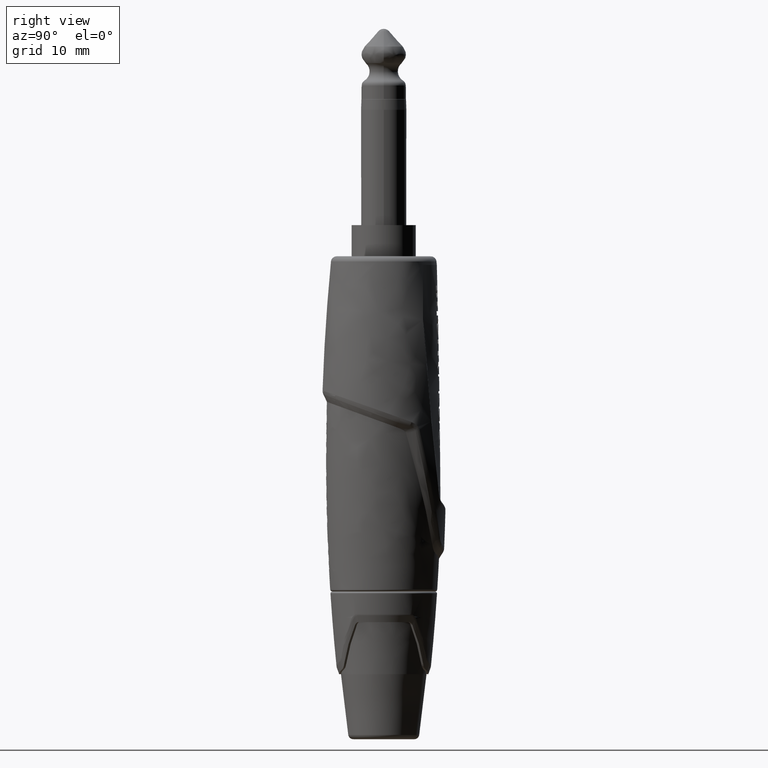
[diagram: clean part render]
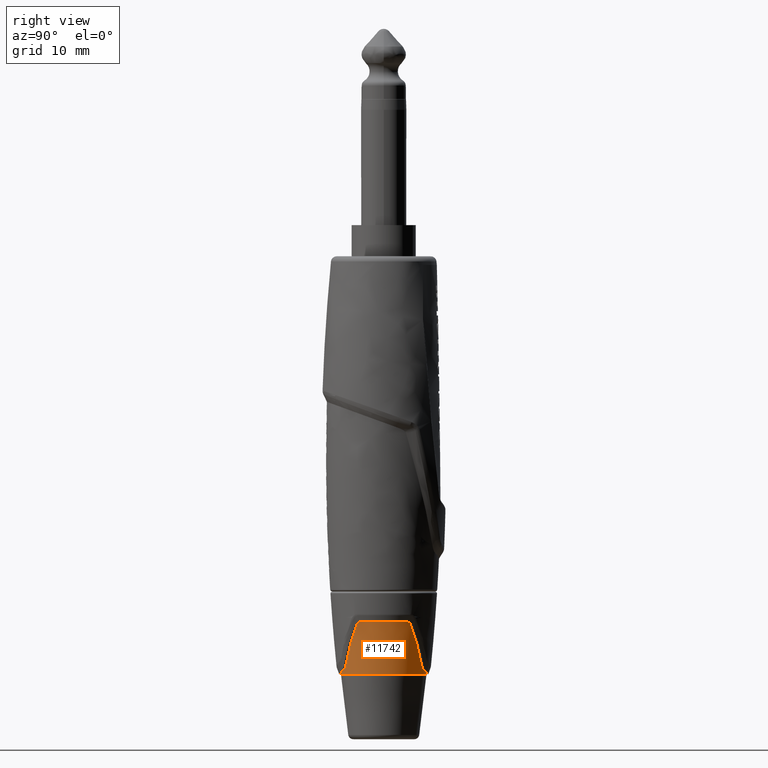
[diagram: same view with one face highlighted and labeled with its STEP entity id]
A machine part, right view. The second image highlights one B-rep face of the part: STEP entity #11742.
In plain terms, the highlighted conical surface has half-angle 4.494 deg.
Its self-contained STEP definition (entity closure, byte-faithful):
#2542=CARTESIAN_POINT('',(-3.214576939721E-9,5.935367829215E0,
-7.980427843015E1));
#2543=CARTESIAN_POINT('',(2.405743001022E-2,5.935368588243E0,
-7.980426877392E1));
#2544=CARTESIAN_POINT('',(7.232392990912E-2,5.935225014975E0,
-7.980236732136E1));
#2545=CARTESIAN_POINT('',(1.450252067045E-1,5.934570322352E0,
-7.979379003557E1));
#2546=CARTESIAN_POINT('',(1.940156220513E-1,5.933832990734E0,
-7.978411093876E1));
#2547=CARTESIAN_POINT('',(2.186053521362E-1,5.933388172123E0,
-7.977824806951E1));
#2553=CARTESIAN_POINT('',(0.E0,0.E0,-7.980427843015E1));
#2554=DIRECTION('',(0.E0,0.E0,-1.E0));
#2555=DIRECTION('',(-1.079773481398E-9,1.E0,0.E0));
#2556=AXIS2_PLACEMENT_3D('',#2553,#2554,#2555);
#2558=CARTESIAN_POINT('',(2.477772238033E0,5.457369396803E0,-7.906449856780E1));
#2559=CARTESIAN_POINT('',(2.502552941307E0,5.446912991119E0,-7.905529364991E1));
#2560=CARTESIAN_POINT('',(2.551326093011E0,5.426263844376E0,-7.903341091480E1));
#2561=CARTESIAN_POINT('',(2.623039114270E0,5.395772970653E0,-7.898967508579E1));
#2562=CARTESIAN_POINT('',(2.690884667158E0,5.366872165230E0,-7.893697436575E1));
#2563=CARTESIAN_POINT('',(2.754393653480E0,5.339823454748E0,-7.887721296952E1));
#2564=CARTESIAN_POINT('',(2.814108127891E0,5.314460599751E0,-7.881108831934E1));
#2565=CARTESIAN_POINT('',(2.869667448939E0,5.290981248271E0,-7.874028096130E1));
#2566=CARTESIAN_POINT('',(2.921107643350E0,5.269374632968E0,-7.866648394814E1));
#2567=CARTESIAN_POINT('',(2.969089848315E0,5.249374527801E0,-7.859010859145E1));
#2568=CARTESIAN_POINT('',(3.013972632005E0,5.230847287580E0,-7.851159777380E1));
#2569=CARTESIAN_POINT('',(3.042105827213E0,5.219362230846E0,-7.845802066240E1));
#2570=CARTESIAN_POINT('',(3.055790395814E0,5.213807218985E0,-7.843095975731E1));
#2572=CARTESIAN_POINT('',(3.055790395814E0,5.213807218985E0,-7.843095975731E1));
#2573=CARTESIAN_POINT('',(3.199225481170E0,5.158814945593E0,-7.811183816789E1));
#2574=CARTESIAN_POINT('',(3.495943720286E0,5.033037258404E0,-7.744049557712E1));
#2575=CARTESIAN_POINT('',(3.970522688522E0,4.783920537680E0,-7.632439744502E1));
#2576=CARTESIAN_POINT('',(4.457517597022E0,4.469062705571E0,-7.513267857058E1));
#2577=CARTESIAN_POINT('',(4.930300136932E0,4.089410358988E0,-7.392806801860E1));
#2578=CARTESIAN_POINT('',(5.176544697530E0,3.848458386938E0,-7.327812770477E1));
#2579=CARTESIAN_POINT('',(5.289067114612E0,3.729791299993E0,-7.297827848723E1));
#2589=CARTESIAN_POINT('',(5.289067114612E0,3.729791299993E0,-7.297827848723E1));
#2590=CARTESIAN_POINT('',(5.295275306549E0,3.723718547019E0,-7.295825623630E1));
#2591=CARTESIAN_POINT('',(5.308246224995E0,3.710509993429E0,-7.291980649672E1));
#2592=CARTESIAN_POINT('',(5.328895395166E0,3.688127923181E0,-7.286678687944E1));
#2593=CARTESIAN_POINT('',(5.350643022831E0,3.663342330566E0,-7.281773410633E1));
#2594=CARTESIAN_POINT('',(5.373456956697E0,3.636186559236E0,-7.277225779388E1));
#2595=CARTESIAN_POINT('',(5.397528357165E0,3.606318482320E0,-7.273023385530E1));
#2596=CARTESIAN_POINT('',(5.423183780264E0,3.573160702655E0,-7.269160119628E1));
#2597=CARTESIAN_POINT('',(5.450956751219E0,3.535737172532E0,-7.265651400215E1));
#2598=CARTESIAN_POINT('',(5.479661439897E0,3.495393380348E0,-7.262708162539E1));
#2599=CARTESIAN_POINT('',(5.507286092369E0,3.454964619192E0,-7.260502173630E1));
#2600=CARTESIAN_POINT('',(5.533920873759E0,3.414409573708E0,-7.258984721764E1));
#2601=CARTESIAN_POINT('',(5.559403245834E0,3.374084714536E0,-7.258108127132E1));
#2602=CARTESIAN_POINT('',(5.575786870553E0,3.347159441775E0,-7.257915629583E1));
#2603=CARTESIAN_POINT('',(5.583817857424E0,3.333708252633E0,-7.257915389419E1));
#2609=CARTESIAN_POINT('',(0.E0,0.E0,-7.257915389419E1));
#2610=DIRECTION('',(0.E0,0.E0,-1.E0));
#2611=DIRECTION('',(8.586158150278E-1,5.126196271937E-1,0.E0));
#2612=AXIS2_PLACEMENT_3D('',#2609,#2610,#2611);
#2618=CARTESIAN_POINT('',(5.583852531396E0,-3.333650174767E0,
-7.257915389268E1));
#2619=CARTESIAN_POINT('',(5.575456746672E0,-3.347713084963E0,
-7.257915389268E1));
#2620=CARTESIAN_POINT('',(5.558148797882E0,-3.376144346927E0,
-7.258124947564E1));
#2621=CARTESIAN_POINT('',(5.530080701538E0,-3.420402738208E0,
-7.259149373315E1));
#2622=CARTESIAN_POINT('',(5.501273111130E0,-3.463934981099E0,
-7.260914290318E1));
#2623=CARTESIAN_POINT('',(5.472872035136E0,-3.505095237454E0,
-7.263337257516E1));
#2624=CARTESIAN_POINT('',(5.444648175350E0,-3.544374822399E0,
-7.266390705311E1));
#2625=CARTESIAN_POINT('',(5.416459092717E0,-3.581995499793E0,
-7.270113989508E1));
#2626=CARTESIAN_POINT('',(5.388498173466E0,-3.617716761391E0,
-7.274511917068E1));
#2627=CARTESIAN_POINT('',(5.360801446575E0,-3.651492924784E0,
-7.279623148726E1));
#2628=CARTESIAN_POINT('',(5.334069356219E0,-3.682443820910E0,
-7.285392132763E1));
#2629=CARTESIAN_POINT('',(5.309573576738E0,-3.709160158451E0,
-7.291587875958E1));
#2630=CARTESIAN_POINT('',(5.295592961788E0,-3.723393432392E0,
-7.295733725753E1));
#2631=CARTESIAN_POINT('',(5.289067115470E0,-3.729791300809E0,
-7.297827847232E1));
#2637=CARTESIAN_POINT('',(5.289067115470E0,-3.729791300809E0,
-7.297827847232E1));
#2638=CARTESIAN_POINT('',(5.176729633156E0,-3.848263353902E0,
-7.327763487716E1));
#2639=CARTESIAN_POINT('',(4.930751265333E0,-4.089009644954E0,
-7.392689613355E1));
#2640=CARTESIAN_POINT('',(4.457781037599E0,-4.468886980102E0,
-7.513202940219E1));
#2641=CARTESIAN_POINT('',(3.970644267600E0,-4.783849891005E0,
-7.632410608510E1));
#2642=CARTESIAN_POINT('',(3.496096530260E0,-5.032965881047E0,
-7.744014381197E1));
#2643=CARTESIAN_POINT('',(3.199284097816E0,-5.158792472378E0,
-7.811170775401E1));
#2644=CARTESIAN_POINT('',(3.055790394264E0,-5.213807219598E0,
-7.843095976056E1));
#2650=CARTESIAN_POINT('',(3.055790394264E0,-5.213807219598E0,
-7.843095976056E1));
#2651=CARTESIAN_POINT('',(3.042099570971E0,-5.219364773057E0,
-7.845803300540E1));
#2652=CARTESIAN_POINT('',(3.013952097555E0,-5.230855685123E0,
-7.851163657447E1));
#2653=CARTESIAN_POINT('',(2.969037462885E0,-5.249396221462E0,
-7.859019778310E1));
#2654=CARTESIAN_POINT('',(2.921022277151E0,-5.269410331427E0,
-7.866661446464E1));
#2655=CARTESIAN_POINT('',(2.869559623600E0,-5.291026680203E0,
-7.874042764454E1));
#2656=CARTESIAN_POINT('',(2.813987754291E0,-5.314511609863E0,
-7.881123185153E1));
#2657=CARTESIAN_POINT('',(2.754269704239E0,-5.339876197180E0,
-7.887733939846E1));
#2658=CARTESIAN_POINT('',(2.690772098420E0,-5.366920123907E0,
-7.893706964960E1));
#2659=CARTESIAN_POINT('',(2.622955852332E0,-5.395808413775E0,
-7.898973074046E1));
#2660=CARTESIAN_POINT('',(2.551278135625E0,-5.426284179299E0,
-7.903343399066E1));
#2661=CARTESIAN_POINT('',(2.502535759709E0,-5.446920241034E0,
-7.905530003205E1));
#2662=CARTESIAN_POINT('',(2.477772237161E0,-5.457369397180E0,
-7.906449856802E1));
#2668=CARTESIAN_POINT('',(2.477772237161E0,-5.457369397180E0,
-7.906449856802E1));
#2669=CARTESIAN_POINT('',(2.356238643223E0,-5.508465834193E0,
-7.911179269155E1));
#2670=CARTESIAN_POINT('',(2.110863869198E0,-5.602351588842E0,
-7.920428871023E1));
#2671=CARTESIAN_POINT('',(1.736727949109E0,-5.718505716387E0,
-7.933595097190E1));
#2672=CARTESIAN_POINT('',(1.359595187793E0,-5.809679232428E0,
-7.945949575850E1));
#2673=CARTESIAN_POINT('',(9.792119978848E-1,-5.876508252455E0,
-7.957510172443E1));
#2674=CARTESIAN_POINT('',(5.976952964328E-1,-5.918954633172E0,
-7.968213263750E1));
#2675=CARTESIAN_POINT('',(3.446537914286E-1,-5.931183096983E0,
-7.974723995524E1));
#2676=CARTESIAN_POINT('',(2.186053523465E-1,-5.933388171936E0,
-7.977824807179E1));
#2682=CARTESIAN_POINT('',(2.186053523465E-1,-5.933388171936E0,
-7.977824807179E1));
#2683=CARTESIAN_POINT('',(1.940139035244E-1,-5.933833021618E0,
-7.978411135111E1));
#2684=CARTESIAN_POINT('',(1.450211776988E-1,-5.934570361226E0,
-7.979379054926E1));
#2685=CARTESIAN_POINT('',(7.232829995520E-2,-5.935224979536E0,
-7.980236686526E1));
#2686=CARTESIAN_POINT('',(2.405926877340E-2,-5.935368587711E0,
-7.980426877434E1));
#2687=CARTESIAN_POINT('',(-2.991405605311E-9,-5.935367829094E0,
-7.980427843169E1));
#3322=CARTESIAN_POINT('',(2.186053521362E-1,5.933388172123E0,
-7.977824806951E1));
#3323=CARTESIAN_POINT('',(3.446526443568E-1,5.931183117228E0,
-7.974724023521E1));
#3324=CARTESIAN_POINT('',(5.976928039685E-1,5.918954826969E0,
-7.968213330393E1));
#3325=CARTESIAN_POINT('',(9.792104924080E-1,5.876508498970E0,
-7.957510217417E1));
#3326=CARTESIAN_POINT('',(1.359596980093E0,5.809679017457E0,-7.945949524798E1));
#3327=CARTESIAN_POINT('',(1.736734705191E0,5.718503739474E0,-7.933594863608E1));
#3328=CARTESIAN_POINT('',(2.110859023059E0,5.602353097571E0,-7.920429041752E1));
#3329=CARTESIAN_POINT('',(2.356236572730E0,5.508466704716E0,-7.911179349726E1));
#3330=CARTESIAN_POINT('',(2.477772238033E0,5.457369396803E0,-7.906449856780E1));
#8341=CARTESIAN_POINT('',(-3.214576939721E-9,5.935367829215E0,
-7.980427843015E1));
#8342=VERTEX_POINT('',#8341);
#8347=CARTESIAN_POINT('',(-2.991405605311E-9,-5.935367829094E0,
-7.980427843169E1));
#8348=VERTEX_POINT('',#8347);
#8349=VERTEX_POINT('',#2558);
#8350=VERTEX_POINT('',#2570);
#8351=VERTEX_POINT('',#3322);
#8363=VERTEX_POINT('',#2682);
#8364=VERTEX_POINT('',#2668);
#8365=VERTEX_POINT('',#2650);
#8366=VERTEX_POINT('',#2637);
#8367=VERTEX_POINT('',#2618);
#8368=CARTESIAN_POINT('',(5.583817857428E0,3.333708252625E0,-7.257915389419E1));
#8369=VERTEX_POINT('',#8368);
#8370=VERTEX_POINT('',#2589);
#11712=CARTESIAN_POINT('',(0.E0,0.E0,-7.619171616216E1));
#11713=DIRECTION('',(0.E0,0.E0,1.E0));
#11714=DIRECTION('',(0.E0,1.E0,0.E0));
#11715=AXIS2_PLACEMENT_3D('',#11712,#11713,#11714);
#11716=CONICAL_SURFACE('',#11715,6.219323215736E0,4.494334434528E0);
#11718=ORIENTED_EDGE('',*,*,#11717,.F.);
#11720=ORIENTED_EDGE('',*,*,#11719,.F.);
#11721=ORIENTED_EDGE('',*,*,#11702,.F.);
#11723=ORIENTED_EDGE('',*,*,#11722,.T.);
#11725=ORIENTED_EDGE('',*,*,#11724,.F.);
#11727=ORIENTED_EDGE('',*,*,#11726,.F.);
#11729=ORIENTED_EDGE('',*,*,#11728,.F.);
#11731=ORIENTED_EDGE('',*,*,#11730,.F.);
#11733=ORIENTED_EDGE('',*,*,#11732,.F.);
#11735=ORIENTED_EDGE('',*,*,#11734,.F.);
#11737=ORIENTED_EDGE('',*,*,#11736,.F.);
#11739=ORIENTED_EDGE('',*,*,#11738,.F.);
#11740=EDGE_LOOP('',(#11718,#11720,#11721,#11723,#11725,#11727,#11729,#11731,
#11733,#11735,#11737,#11739));
#11741=FACE_OUTER_BOUND('',#11740,.F.);
#11742=ADVANCED_FACE('',(#11741),#11716,.T.);
#2548=B_SPLINE_CURVE_WITH_KNOTS('',3,(#2542,#2543,#2544,#2545,#2546,#2547),
.UNSPECIFIED.,.F.,.F.,(4,1,1,4),(0.E0,3.333333333333E-1,6.666666666667E-1,1.E0),
.UNSPECIFIED.);
#2557=CIRCLE('',#2556,5.935367829215E0);
#2571=B_SPLINE_CURVE_WITH_KNOTS('',3,(#2558,#2559,#2560,#2561,#2562,#2563,#2564,
#2565,#2566,#2567,#2568,#2569,#2570),.UNSPECIFIED.,.F.,.F.,(4,1,1,1,1,1,1,1,1,1,
4),(0.E0,1.E-1,2.E-1,3.E-1,4.E-1,5.E-1,6.E-1,7.E-1,8.E-1,9.E-1,1.E0),
.UNSPECIFIED.);
#2580=B_SPLINE_CURVE_WITH_KNOTS('',3,(#2572,#2573,#2574,#2575,#2576,#2577,#2578,
#2579),.UNSPECIFIED.,.F.,.F.,(4,1,1,1,1,4),(0.E0,2.E-1,4.E-1,6.E-1,8.E-1,1.E0),
.UNSPECIFIED.);
#2604=B_SPLINE_CURVE_WITH_KNOTS('',3,(#2589,#2590,#2591,#2592,#2593,#2594,#2595,
#2596,#2597,#2598,#2599,#2600,#2601,#2602,#2603),.UNSPECIFIED.,.F.,.F.,(4,1,1,1,
1,1,1,1,1,1,1,1,4),(0.E0,8.333333333333E-2,1.666666666667E-1,2.5E-1,
3.333333333333E-1,4.166666666667E-1,5.E-1,5.833333333333E-1,6.666666666667E-1,
7.5E-1,8.333333333333E-1,9.166666666667E-1,1.E0),.UNSPECIFIED.);
#2613=CIRCLE('',#2612,6.503278602256E0);
#2632=B_SPLINE_CURVE_WITH_KNOTS('',3,(#2618,#2619,#2620,#2621,#2622,#2623,#2624,
#2625,#2626,#2627,#2628,#2629,#2630,#2631),.UNSPECIFIED.,.F.,.F.,(4,1,1,1,1,1,1,
1,1,1,1,4),(0.E0,9.090909090909E-2,1.818181818182E-1,2.727272727273E-1,
3.636363636364E-1,4.545454545455E-1,5.454545454545E-1,6.363636363636E-1,
7.272727272727E-1,8.181818181818E-1,9.090909090909E-1,1.E0),.UNSPECIFIED.);
#2645=B_SPLINE_CURVE_WITH_KNOTS('',3,(#2637,#2638,#2639,#2640,#2641,#2642,#2643,
#2644),.UNSPECIFIED.,.F.,.F.,(4,1,1,1,1,4),(0.E0,2.E-1,4.E-1,6.E-1,8.E-1,1.E0),
.UNSPECIFIED.);
#2663=B_SPLINE_CURVE_WITH_KNOTS('',3,(#2650,#2651,#2652,#2653,#2654,#2655,#2656,
#2657,#2658,#2659,#2660,#2661,#2662),.UNSPECIFIED.,.F.,.F.,(4,1,1,1,1,1,1,1,1,1,
4),(0.E0,1.E-1,2.E-1,3.E-1,4.E-1,5.E-1,6.E-1,7.E-1,8.E-1,9.E-1,1.E0),
.UNSPECIFIED.);
#2677=B_SPLINE_CURVE_WITH_KNOTS('',3,(#2668,#2669,#2670,#2671,#2672,#2673,#2674,
#2675,#2676),.UNSPECIFIED.,.F.,.F.,(4,1,1,1,1,1,4),(0.E0,1.666666666667E-1,
3.333333333333E-1,5.E-1,6.666666666667E-1,8.333333333333E-1,1.E0),
.UNSPECIFIED.);
#2688=B_SPLINE_CURVE_WITH_KNOTS('',3,(#2682,#2683,#2684,#2685,#2686,#2687),
.UNSPECIFIED.,.F.,.F.,(4,1,1,4),(0.E0,3.333333333333E-1,6.666666666667E-1,1.E0),
.UNSPECIFIED.);
#3331=B_SPLINE_CURVE_WITH_KNOTS('',3,(#3322,#3323,#3324,#3325,#3326,#3327,#3328,
#3329,#3330),.UNSPECIFIED.,.F.,.F.,(4,1,1,1,1,1,4),(0.E0,1.666666666667E-1,
3.333333333333E-1,5.E-1,6.666666666667E-1,8.333333333333E-1,1.E0),
.UNSPECIFIED.);
#11702=EDGE_CURVE('',#8342,#8351,#2548,.T.);
#11717=EDGE_CURVE('',#8349,#8350,#2571,.T.);
#11719=EDGE_CURVE('',#8351,#8349,#3331,.T.);
#11722=EDGE_CURVE('',#8342,#8348,#2557,.T.);
#11724=EDGE_CURVE('',#8363,#8348,#2688,.T.);
#11726=EDGE_CURVE('',#8364,#8363,#2677,.T.);
#11728=EDGE_CURVE('',#8365,#8364,#2663,.T.);
#11730=EDGE_CURVE('',#8366,#8365,#2645,.T.);
#11732=EDGE_CURVE('',#8367,#8366,#2632,.T.);
#11734=EDGE_CURVE('',#8369,#8367,#2613,.T.);
#11736=EDGE_CURVE('',#8370,#8369,#2604,.T.);
#11738=EDGE_CURVE('',#8350,#8370,#2580,.T.);